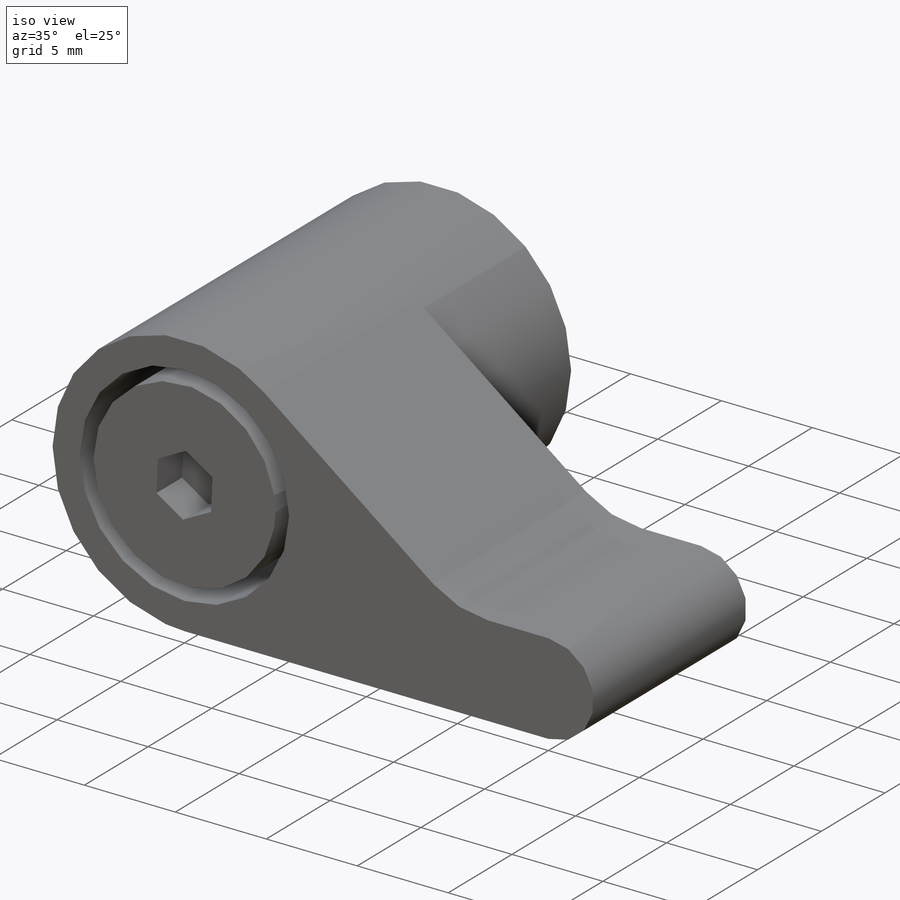
[diagram: iso view]
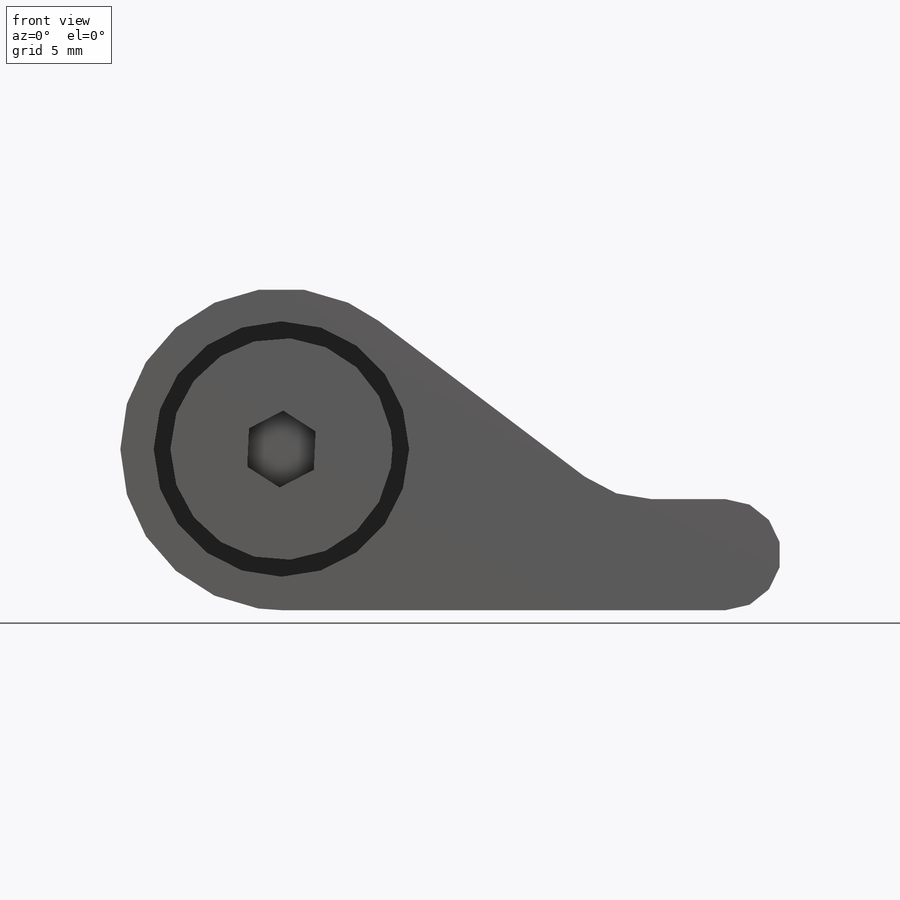
[diagram: front view]
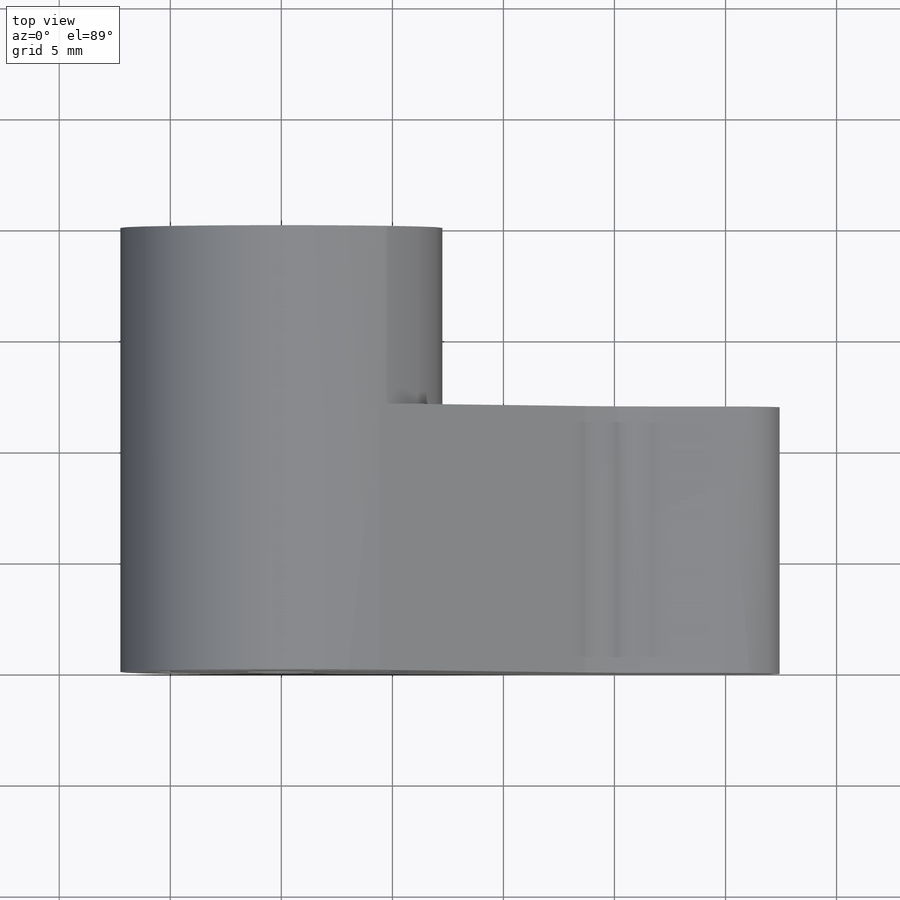
[diagram: top view]
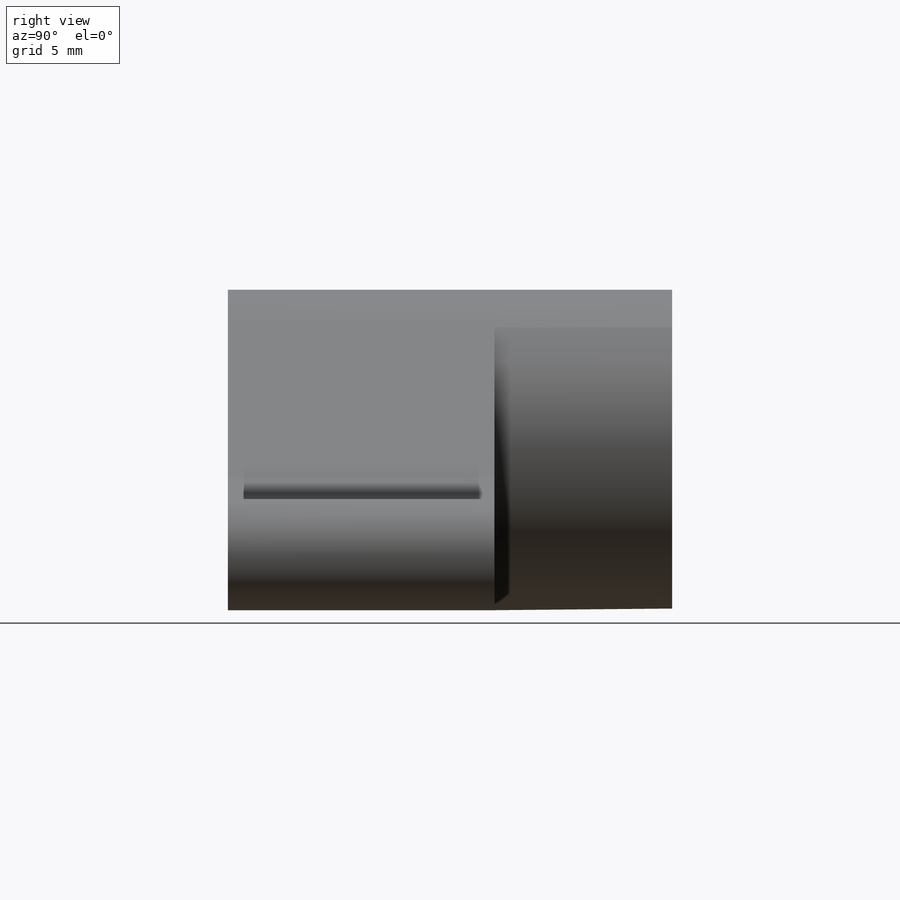
[diagram: right view]
SOLIDWORKS PART (.sldprt)
format: sldprt  version: not decoded by parser v0  size: 226,304 bytes
history: native  units: mm
features: sketch x5, plane x3, extrude x3, cut_extrude x2, material x1, fillet x1 (+8 scaffold rows collapsed)
feature tree (23):
  scaffold x8  (default folders/planes/origin — collapsed)
  material  "Материал <не указан>"
  plane  "Спереди"
  plane  "Сверху"
  plane  "Справа"
  sketch  "Эскиз1"  dims[D1=14.5mm]
  extrude  "Бобышка-Вытянуть1"  Depth=20mm
  sketch  "Эскиз2"  dims[D1=14.5mm D2=20.0mm D3=5.0mm D4=5.0mm]
  extrude  "Бобышка-Вытянуть2"  Depth=12mm
  fillet  "Скругление1"  Radius=5mm
  sketch  "Эскиз3"  dims[D1=11.5mm]
  cut_extrude  "Вырез-Вытянуть1"  Depth=10mm
  sketch  "Эскиз4"  dims[D1=10.0mm]
  extrude  "Бобышка-Вытянуть3"  [1 undecoded]
  sketch  "Эскиз5"  dims[D1=3.0mm]
  cut_extrude  "Вырез-Вытянуть2"  Depth=2mm
decode coverage: 10 of 11 modeling features carry decoded parameters
note: 1 parameter value undecoded
note: suppression state not decoded; provenance and decode notes live in map.json
